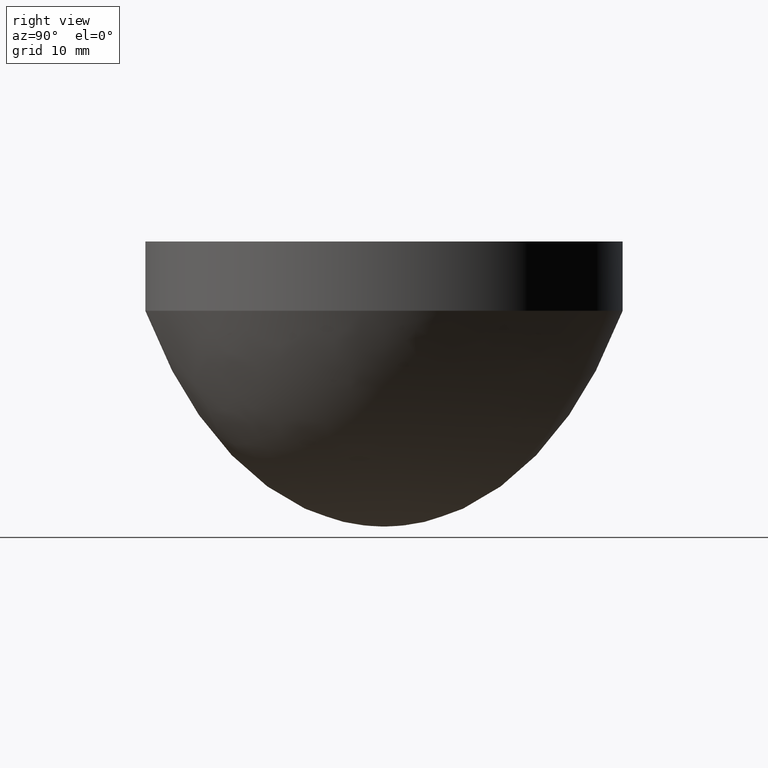
[diagram: clean part render]
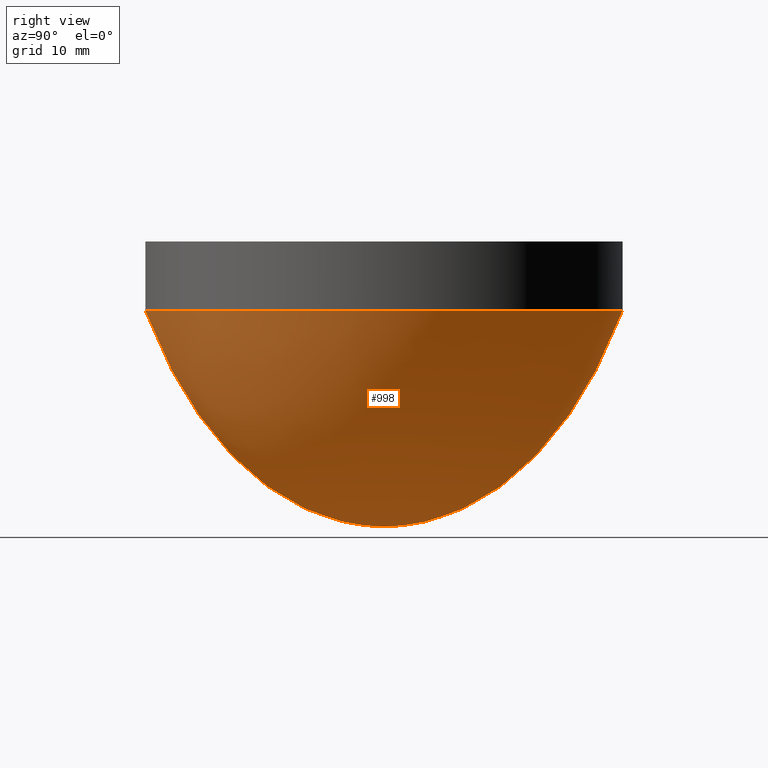
[diagram: same view with one face highlighted and labeled with its STEP entity id]
A machine part, right view. The second image highlights one B-rep face of the part: STEP entity #998.
In plain terms, the highlighted face is a freeform B-spline surface patch.
Its self-contained STEP definition (entity closure, byte-faithful):
#3 = CARTESIAN_POINT ( 'NONE',  ( -2.136753529762313070E-15, -17.44791666666669983, 9.136448106880079578 ) ) ;
#6 = CARTESIAN_POINT ( 'NONE',  ( 5.421613433725269732E-15, 22.13541666666669983, 16.20529410536409998 ) ) ;
#8 = CARTESIAN_POINT ( 'NONE',  ( 29.16666666666659680, 14.58333333333329307, 6.129499861953730644 ) ) ;
#11 = CARTESIAN_POINT ( 'NONE',  ( 26.04166666666660035, 13.02083333333329485, 4.800734322623869232 ) ) ;
#17 = CARTESIAN_POINT ( 'NONE',  ( 32.29166666666659324, -16.14583333333330373, 7.670129306182640327 ) ) ;
#18 = CARTESIAN_POINT ( 'NONE',  ( 0.000000000000000000, 20.05208333333330017, 12.66273615372799988 ) ) ;
#22 = CARTESIAN_POINT ( 'NONE',  ( 22.39583333333339965, 11.19791666666669450, 3.489552552347880532 ) ) ;
#26 = CARTESIAN_POINT ( 'NONE',  ( 49.99999999999999289, -25.00000000000001066, 22.59373731387159623 ) ) ;
#27 = CARTESIAN_POINT ( 'NONE',  ( 16.14583333333334281, 8.072916666666667851, 1.772764951032109737 ) ) ;
#28 = CARTESIAN_POINT ( 'NONE',  ( 0.000000000000000000, 13.80208333333330017, 5.440133815030280040 ) ) ;
#33 = CARTESIAN_POINT ( 'NONE',  ( -9.248634681060737195E-16, -7.552083333333329485, 1.546627555214010075 ) ) ;
#34 = CARTESIAN_POINT ( 'NONE',  ( -7.016205620115047349E-16, -5.729166666666669627, 0.8817523654343040196 ) ) ;
#36 = CARTESIAN_POINT ( 'NONE',  ( 45.83333333333339255, -22.91666666666670693, 17.74455419526839961 ) ) ;
#40 = CARTESIAN_POINT ( 'NONE',  ( 2.742698560590434422E-15, 11.19791666666669983, 3.489552552347880088 ) ) ;
#41 = CARTESIAN_POINT ( 'NONE',  ( -1.179998217928439795E-15, -9.635416666666671404, 2.551803787334469664 ) ) ;
#46 = CARTESIAN_POINT ( 'NONE',  ( -1.116214530472847586E-15, -9.114583333333330373, 2.274978497457980087 ) ) ;
#50 = CARTESIAN_POINT ( 'NONE',  ( 11.97916666666665719, -5.989583333333333037, 0.9649155050060189698 ) ) ;
#54 = CARTESIAN_POINT ( 'NONE',  ( 0.5208333333333340365, 0.2604166666666669072, 0.000000000000000000 ) ) ;
#56 = CARTESIAN_POINT ( 'NONE',  ( 0.000000000000000000, 11.97916666666669983, 4.021656314591459669 ) ) ;
#61 = CARTESIAN_POINT ( 'NONE',  ( -1.275673749111830623E-16, -1.041666666666670071, 0.02708659160149350098 ) ) ;
#62 = CARTESIAN_POINT ( 'NONE',  ( 0.000000000000000000, 5.729166666666669627, 0.8817523654343040196 ) ) ;
#65 = CARTESIAN_POINT ( 'NONE',  ( 7.291666666666658969, -3.645833333333331261, 0.3535786717714339833 ) ) ;
#66 = DIRECTION ( 'NONE',  ( 0.000000000000000000, 1.000000000000000000, 0.000000000000000000 ) ) ;
#68 = CARTESIAN_POINT ( 'NONE',  ( -2.902157779229408929E-15, -23.69791666666669983, 19.42245672759580088 ) ) ;
#69 = CARTESIAN_POINT ( 'NONE',  ( -6.378368745559128216E-16, -5.208333333333330373, 0.7269456000648499838 ) ) ;
#78 = CARTESIAN_POINT ( 'NONE',  ( -2.232429060945699905E-15, -18.22916666666669983, 10.10510103233170121 ) ) ;
#84 = CARTESIAN_POINT ( 'NONE',  ( 3.699453872424303556E-15, 15.10416666666669983, 6.618331575722380400 ) ) ;
#88 = CARTESIAN_POINT ( 'NONE',  ( 3.954588622246653459E-15, 16.14583333333330017, 7.670129306182640327 ) ) ;
#89 = CARTESIAN_POINT ( 'NONE',  ( 0.000000000000000000, 0.000000000000000000, 0.000000000000000000 ) ) ;
#93 = CARTESIAN_POINT ( 'NONE',  ( 28.64583333333339965, 14.32291666666669450, 5.894061955706379585 ) ) ;
#95 = CARTESIAN_POINT ( 'NONE',  ( 0.000000000000000000, 25.00000000000000000, 22.59373731387159978 ) ) ;
#98 = CARTESIAN_POINT ( 'NONE',  ( 47.91666666666660035, 23.95833333333328952, 20.01530144149420209 ) ) ;
#99 = CARTESIAN_POINT ( 'NONE',  ( 25.52083333333339610, 12.76041666666669272, 4.598314498066849332 ) ) ;
#100 = CARTESIAN_POINT ( 'NONE',  ( -4.464858121891388568E-16, -3.645833333333330373, 0.3535786717714339833 ) ) ;
#106 = CARTESIAN_POINT ( 'NONE',  ( -1.498916655206391965E-15, -12.23958333333330017, 4.208775266709250396 ) ) ;
#107 = CARTESIAN_POINT ( 'NONE',  ( 0.000000000000000000, 14.32291666666670160, 5.894061955706379585 ) ) ;
#113 = CARTESIAN_POINT ( 'NONE',  ( 16.66666666666665719, 8.333333333333326820, 1.891988625122589918 ) ) ;
#114 = CARTESIAN_POINT ( 'NONE',  ( -1.211890061656234420E-15, -9.895833333333328596, 2.696745851897610180 ) ) ;
#116 = CARTESIAN_POINT ( 'NONE',  ( 5.612964496092043401E-15, 22.91666666666669983, 17.74455419526839961 ) ) ;
#119 = CARTESIAN_POINT ( 'NONE',  ( 14.58333333333333393, -7.291666666666672292, 1.439713985089339898 ) ) ;
#120 = CARTESIAN_POINT ( 'NONE',  ( -9.248634681060737195E-16, -7.552083333333329485, 1.546627555214010075 ) ) ;
#122 = CARTESIAN_POINT ( 'NONE',  ( 5.038911308991721605E-15, 20.57291666666669627, 13.48022620380510084 ) ) ;
#124 = CARTESIAN_POINT ( 'NONE',  ( 1.658375873845373376E-15, 6.770833333333330373, 1.237893108845469881 ) ) ;
#125 = CARTESIAN_POINT ( 'NONE',  ( 0.000000000000000000, 8.333333333333330373, 1.891988625122589918 ) ) ;
#129 = CARTESIAN_POINT ( 'NONE',  ( 22.91666666666660390, 11.45833333333329662, 3.662044769638530539 ) ) ;
#133 = CARTESIAN_POINT ( 'NONE',  ( 40.10416666666660035, 20.05208333333328952, 12.66273615372799810 ) ) ;
#135 = CARTESIAN_POINT ( 'NONE',  ( 2.083333333333340143, 1.041666666666669627, 0.02708659160149350098 ) ) ;
#139 = CARTESIAN_POINT ( 'NONE',  ( -4.464858121891388568E-16, -3.645833333333330373, 0.3535786717714339833 ) ) ;
#140 = CARTESIAN_POINT ( 'NONE',  ( 0.000000000000000000, 5.989583333333330373, 0.9649155050060189698 ) ) ;
#144 = CARTESIAN_POINT ( 'NONE',  ( -5.421613433725257899E-16, -4.427083333333329485, 0.5233451287309639488 ) ) ;
#147 = CARTESIAN_POINT ( 'NONE',  ( -2.423780123312473574E-15, -19.79166666666669627, 12.26966891731320075 ) ) ;
#148 = CARTESIAN_POINT ( 'NONE',  ( -5.102694996447308687E-16, -4.166666666666670515, 0.4630318066237559815 ) ) ;
#152 = CARTESIAN_POINT ( 'NONE',  ( -2.934049622957196258E-15, -23.95833333333330017, 20.01530144149420209 ) ) ;
#153 = CARTESIAN_POINT ( 'NONE',  ( 8.333333333333339255, 4.166666666666667851, 0.4630318066237559815 ) ) ;
#155 = CARTESIAN_POINT ( 'NONE',  ( 38.02083333333339965, 19.01041666666668917, 11.14726954152989968 ) ) ;
#160 = CARTESIAN_POINT ( 'NONE',  ( 4.082155997157851682E-15, 16.66666666666669627, 8.235589448737830054 ) ) ;
#161 = VERTEX_POINT ( 'NONE', #89 ) ;
#166 = CARTESIAN_POINT ( 'NONE',  ( 30.20833333333338899, -15.10416666666670338, 6.618331575722379512 ) ) ;
#169 = CARTESIAN_POINT ( 'NONE',  ( -2.328104592129086739E-15, -19.01041666666669983, 11.14726954152989791 ) ) ;
#171 = CARTESIAN_POINT ( 'NONE',  ( 3.571886497513106121E-15, 14.58333333333330017, 6.129499861953729756 ) ) ;
#176 = B_SPLINE_CURVE_WITH_KNOTS ( 'NONE', 3,
 ( #95, #940, #190, #528, #625, #874, #456, #1048, #796, #364, #718, #433, #775, #18, #368, #694, #863, #607, #439, #286, #185, #619, #703, #521, #197, #781, #1031, #534, #107, #28, #869, #469, #222, #306, #56, #325, #653, #727, #636, #554, #476, #884, #802, #125, #643, #972, #546, #657, #395, #140, #62, #212, #806, #722, #1053, #228, #735, #815, #400, #820, #317, #569, #739, #649, #977, #1069 ),
 .UNSPECIFIED., .F., .F.,
 ( 4, 2, 2, 2, 2, 2, 2, 2, 2, 2, 2, 2, 2, 2, 2, 2, 2, 2, 2, 2, 2, 2, 2, 2, 2, 2, 2, 2, 2, 2, 2, 2, 4 ),
 ( -1.000000000000000000, -0.9687500000000000000, -0.9375000000000000000, -0.9062500000000000000, -0.8750000000000000000, -0.8437500000000000000, -0.8125000000000000000, -0.7812500000000000000, -0.7500000000000000000, -0.7187500000000000000, -0.6875000000000000000, -0.6562500000000000000, -0.6250000000000000000, -0.5937500000000000000, -0.5625000000000000000, -0.5312500000000000000, -0.5000000000000000000, -0.4687500000000000000, -0.4375000000000000000, -0.4062500000000000000, -0.3750000000000000000, -0.3437500000000000000, -0.3125000000000000000, -0.2812500000000000000, -0.2500000000000000000, -0.2187500000000000000, -0.1875000000000000000, -0.1562500000000000000, -0.1250000000000000000, -0.09375000000000000000, -0.06250000000000000000, -0.03125000000000000000, 0.000000000000000000 ),
 .UNSPECIFIED. ) ;
#178 = CARTESIAN_POINT ( 'NONE',  ( 31.77083333333339255, -15.88541666666670160, 7.397623930349159771 ) ) ;
#184 = CARTESIAN_POINT ( 'NONE',  ( 3.189184372779557600E-15, 13.02083333333330017, 4.800734322623869232 ) ) ;
#185 = CARTESIAN_POINT ( 'NONE',  ( 0.000000000000000000, 17.44791666666669983, 9.136448106880079578 ) ) ;
#189 = CARTESIAN_POINT ( 'NONE',  ( 17.70833333333334281, 8.854166666666666075, 2.143095489030910183 ) ) ;
#190 = CARTESIAN_POINT ( 'NONE',  ( 0.000000000000000000, 24.47916666666669983, 21.25884004741030253 ) ) ;
#196 = CARTESIAN_POINT ( 'NONE',  ( 2.551347498223660753E-15, 10.41666666666670160, 3.000145458530130149 ) ) ;
#197 = CARTESIAN_POINT ( 'NONE',  ( 0.000000000000000000, 15.88541666666669627, 7.397623930349159771 ) ) ;
#202 = CARTESIAN_POINT ( 'NONE',  ( 2.041077998578921108E-15, 8.333333333333330373, 1.891988625122589918 ) ) ;
#203 = CARTESIAN_POINT ( 'NONE',  ( -1.371349280295217211E-15, -11.19791666666669983, 3.489552552347880088 ) ) ;
#205 = CARTESIAN_POINT ( 'NONE',  ( 38.54166666666658614, -19.27083333333330373, 11.51193404118749797 ) ) ;
#207 = CARTESIAN_POINT ( 'NONE',  ( -8.929716243782786997E-16, -7.291666666666670515, 1.439713985089339898 ) ) ;
#208 = CARTESIAN_POINT ( 'NONE',  ( -1.020538999289460554E-15, -8.333333333333330373, 1.891988625122589918 ) ) ;
#211 = CARTESIAN_POINT ( 'NONE',  ( 24.47916666666660035, 12.23958333333329485, 4.208775266709250396 ) ) ;
#212 = CARTESIAN_POINT ( 'NONE',  ( 0.000000000000000000, 5.208333333333330373, 0.7269456000648499838 ) ) ;
#214 = CARTESIAN_POINT ( 'NONE',  ( 45.83333333333339965, 22.91666666666668917, 17.74455419526839961 ) ) ;
#216 = CARTESIAN_POINT ( 'NONE',  ( -3.189184372779570394E-17, -0.2604166666666670182, 0.000000000000000000 ) ) ;
#221 = CARTESIAN_POINT ( 'NONE',  ( 9.895833333333339255, -4.947916666666670515, 0.6553020603301110691 ) ) ;
#222 = CARTESIAN_POINT ( 'NONE',  ( 0.000000000000000000, 12.76041666666669983, 4.598314498066850220 ) ) ;
#224 = CARTESIAN_POINT ( 'NONE',  ( 41.14583333333339255, 20.57291666666668561, 13.48022620380510084 ) ) ;
#227 = CARTESIAN_POINT ( 'NONE',  ( 5.102694996447296854E-16, 2.083333333333330373, 0.1138825118972520006 ) ) ;
#228 = CARTESIAN_POINT ( 'NONE',  ( 0.000000000000000000, 3.645833333333330373, 0.3535786717714339833 ) ) ;
#233 = CARTESIAN_POINT ( 'NONE',  ( -2.328104592129086739E-15, -19.01041666666669983, 11.14726954152989791 ) ) ;
#235 = CARTESIAN_POINT ( 'NONE',  ( 7.016205620115036502E-16, 2.864583333333329929, 0.2172071281811369936 ) ) ;
#238 = CARTESIAN_POINT ( 'NONE',  ( 8.854166666666657193, -4.427083333333330373, 0.5233451287309639488 ) ) ;
#241 = CARTESIAN_POINT ( 'NONE',  ( 0.000000000000000000, 25.00000000000000000, 22.59373731387159978 ) ) ;
#244 = CARTESIAN_POINT ( 'NONE',  ( -1.977294311123326730E-15, -16.14583333333330017, 7.670129306182640327 ) ) ;
#247 = CARTESIAN_POINT ( 'NONE',  ( 43.22916666666659324, -21.61458333333330728, 15.24763873080519794 ) ) ;
#251 = CARTESIAN_POINT ( 'NONE',  ( -2.838374091773809423E-15, -23.17708333333330373, 18.28707795603439834 ) ) ;
#253 = CARTESIAN_POINT ( 'NONE',  ( 38.54166666666659324, 19.27083333333328596, 11.51193404118749797 ) ) ;
#254 = CARTESIAN_POINT ( 'NONE',  ( -2.519455654495860803E-15, -20.57291666666669627, 13.48022620380510084 ) ) ;
#257 = CARTESIAN_POINT ( 'NONE',  ( 33.33333333333339255, 16.66666666666668917, 8.235589448737830054 ) ) ;
#261 = CARTESIAN_POINT ( 'NONE',  ( 27.60416666666658969, -13.80208333333330373, 5.440133815030280040 ) ) ;
#263 = CARTESIAN_POINT ( 'NONE',  ( 41.66666666666659324, -20.83333333333330017, 13.90464506263379896 ) ) ;
#265 = CARTESIAN_POINT ( 'NONE',  ( 32.29166666666660035, 16.14583333333329307, 7.670129306182640327 ) ) ;
#272 = CARTESIAN_POINT ( 'NONE',  ( 47.39583333333339255, -23.69791666666670338, 19.42245672759580088 ) ) ;
#273 = CARTESIAN_POINT ( 'NONE',  ( 3.316751747690756612E-15, 13.54166666666669983, 5.221644257796890010 ) ) ;
#275 = CARTESIAN_POINT ( 'NONE',  ( -1.403241124023004934E-15, -11.45833333333330195, 3.662044769638530095 ) ) ;
#276 = CARTESIAN_POINT ( 'NONE',  ( 0.000000000000000000, 0.000000000000000000, 0.000000000000000000 ) ) ;
#280 = CARTESIAN_POINT ( 'NONE',  ( 2.423780123312468840E-15, 9.895833333333328596, 2.696745851897610180 ) ) ;
#281 = CARTESIAN_POINT ( 'NONE',  ( 0.000000000000000000, 0.000000000000000000, 0.000000000000000000 ) ) ;
#285 = CARTESIAN_POINT ( 'NONE',  ( -1.084322686745052763E-15, -8.854166666666669627, 2.143095489030910183 ) ) ;
#286 = CARTESIAN_POINT ( 'NONE',  ( 0.000000000000000000, 17.70833333333329662, 9.451398195364669519 ) ) ;
#294 = CARTESIAN_POINT ( 'NONE',  ( -2.902157779229408929E-15, -23.69791666666669983, 19.42245672759580088 ) ) ;
#295 = CARTESIAN_POINT ( 'NONE',  ( 15.10416666666665542, -7.552083333333331261, 1.546627555214010075 ) ) ;
#296 = CARTESIAN_POINT ( 'NONE',  ( -8.929716243782786997E-16, -7.291666666666670515, 1.439713985089339898 ) ) ;
#299 = CARTESIAN_POINT ( 'NONE',  ( -3.029725154140583487E-15, -24.73958333333330017, 21.90952063993099941 ) ) ;
#300 = CARTESIAN_POINT ( 'NONE',  ( 1.785943248756557399E-15, 7.291666666666670515, 1.439713985089339898 ) ) ;
#301 = CARTESIAN_POINT ( 'NONE',  ( -9.886471555616659286E-16, -8.072916666666671404, 1.772764951032109959 ) ) ;
#303 = CARTESIAN_POINT ( 'NONE',  ( 44.79166666666660745, 22.39583333333329307, 16.70365824749779904 ) ) ;
#305 = CARTESIAN_POINT ( 'NONE',  ( 13.02083333333333748, 6.510416666666666075, 1.142985929082689811 ) ) ;
#306 = CARTESIAN_POINT ( 'NONE',  ( 0.000000000000000000, 12.23958333333330017, 4.208775266709250396 ) ) ;
#308 = CARTESIAN_POINT ( 'NONE',  ( 40.10416666666659324, -20.05208333333330373, 12.66273615372799810 ) ) ;
#310 = CARTESIAN_POINT ( 'NONE',  ( -6.378368745559127230E-17, -0.5208333333333330373, 0.005414622185026030099 ) ) ;
#316 = CARTESIAN_POINT ( 'NONE',  ( 11.45833333333333925, 5.729166666666666963, 0.8817523654343040196 ) ) ;
#317 = CARTESIAN_POINT ( 'NONE',  ( 0.000000000000000000, 1.822916666666670071, 0.08674189912522990709 ) ) ;
#320 = CARTESIAN_POINT ( 'NONE',  ( 5.729166666666658969, -2.864583333333330817, 0.2172071281811370214 ) ) ;
#324 = CARTESIAN_POINT ( 'NONE',  ( 11.97916666666666075, 5.989583333333327708, 0.9649155050060189698 ) ) ;
#325 = CARTESIAN_POINT ( 'NONE',  ( 0.000000000000000000, 11.45833333333330195, 3.662044769638530095 ) ) ;
#328 = CARTESIAN_POINT ( 'NONE',  ( -2.519455654495860803E-15, -20.57291666666669627, 13.48022620380510084 ) ) ;
#329 = CARTESIAN_POINT ( 'NONE',  ( 11.45833333333333748, -5.729166666666671404, 0.8817523654343040196 ) ) ;
#332 = CARTESIAN_POINT ( 'NONE',  ( -1.562700342661991077E-15, -12.76041666666669983, 4.598314498066850220 ) ) ;
#333 = CARTESIAN_POINT ( 'NONE',  ( 4.719992871713748135E-15, 19.27083333333330017, 11.51193404118749974 ) ) ;
#336 = CARTESIAN_POINT ( 'NONE',  ( 34.89583333333339255, -17.44791666666670338, 9.136448106880079578 ) ) ;
#339 = CARTESIAN_POINT ( 'NONE',  ( 0.000000000000000000, 0.000000000000000000, 0.000000000000000000 ) ) ;
#341 = CARTESIAN_POINT ( 'NONE',  ( 4.528641809346975255E-15, 18.48958333333330017, 10.44385178771110034 ) ) ;
#344 = CARTESIAN_POINT ( 'NONE',  ( -2.742698560590422983E-15, -22.39583333333330373, 16.70365824749779904 ) ) ;
#346 = CARTESIAN_POINT ( 'NONE',  ( 3.508102810057530281E-15, 14.32291666666670160, 5.894061955706379585 ) ) ;
#352 = CARTESIAN_POINT ( 'NONE',  ( 25.52083333333339255, -12.76041666666670338, 4.598314498066849332 ) ) ;
#355 = CARTESIAN_POINT ( 'NONE',  ( 5.995666620825592317E-15, 24.47916666666669983, 21.25884004741030253 ) ) ;
#356 = CARTESIAN_POINT ( 'NONE',  ( 27.08333333333339610, 13.54166666666669272, 5.221644257796890010 ) ) ;
#357 = CARTESIAN_POINT ( 'NONE',  ( -6.378368745559127230E-17, -0.5208333333333330373, 0.005414622185026030099 ) ) ;
#359 = CARTESIAN_POINT ( 'NONE',  ( 6.378368745559140789E-17, 0.2604166666666670182, 0.000000000000000000 ) ) ;
#363 = CARTESIAN_POINT ( 'NONE',  ( 20.83333333333340320, 10.41666666666669627, 3.000145458530130149 ) ) ;
#364 = CARTESIAN_POINT ( 'NONE',  ( 0.000000000000000000, 21.61458333333330017, 15.24763873080519971 ) ) ;
#366 = CARTESIAN_POINT ( 'NONE',  ( 50.00000000000000000, 24.99999999999998934, 22.59373731387159623 ) ) ;
#367 = CARTESIAN_POINT ( 'NONE',  ( 16.14583333333333925, -8.072916666666673180, 1.772764951032109737 ) ) ;
#368 = CARTESIAN_POINT ( 'NONE',  ( 0.000000000000000000, 19.79166666666669627, 12.26966891731320075 ) ) ;
#372 = CARTESIAN_POINT ( 'NONE',  ( 2.934049622957208485E-15, 11.97916666666669983, 4.021656314591459669 ) ) ;
#373 = CARTESIAN_POINT ( 'NONE',  ( -5.421613433725257899E-16, -4.427083333333329485, 0.5233451287309639488 ) ) ;
#380 = CARTESIAN_POINT ( 'NONE',  ( 18.22916666666666430, 9.114583333333326820, 2.274978497457980531 ) ) ;
#381 = CARTESIAN_POINT ( 'NONE',  ( -1.594592186389778603E-16, -1.302083333333329929, 0.04334392892933099789 ) ) ;
#384 = CARTESIAN_POINT ( 'NONE',  ( 13.02083333333333393, -6.510416666666671404, 1.142985929082689811 ) ) ;
#389 = CARTESIAN_POINT ( 'NONE',  ( 2.604166666666659857, 1.302083333333329263, 0.04334392892933099789 ) ) ;
#393 = CARTESIAN_POINT ( 'NONE',  ( 1.084322686745051580E-15, 4.427083333333329485, 0.5233451287309639488 ) ) ;
#394 = CIRCLE ( 'NONE', #896, 25.00000000000000000 ) ;
#395 = CARTESIAN_POINT ( 'NONE',  ( 0.000000000000000000, 6.510416666666669627, 1.142985929082689811 ) ) ;
#399 = CARTESIAN_POINT ( 'NONE',  ( 2.083333333333339699, -1.041666666666670293, 0.02708659160149350098 ) ) ;
#400 = CARTESIAN_POINT ( 'NONE',  ( 0.000000000000000000, 2.604166666666670071, 0.1791151418598460054 ) ) ;
#404 = CARTESIAN_POINT ( 'NONE',  ( -1.785943248756553061E-15, -14.58333333333330017, 6.129499861953729756 ) ) ;
#405 = CARTESIAN_POINT ( 'NONE',  ( 5.208333333333340143, 2.604166666666668739, 0.1791151418598459777 ) ) ;
#408 = CARTESIAN_POINT ( 'NONE',  ( 2.604166666666659857, -1.302083333333330373, 0.04334392892933099789 ) ) ;
#415 = VERTEX_POINT ( 'NONE', #241 ) ;
#418 = CARTESIAN_POINT ( 'NONE',  ( -2.264320904673487628E-15, -18.48958333333330017, 10.44385178771110034 ) ) ;
#419 = ORIENTED_EDGE ( 'NONE', *, *, #426, .T. ) ;
#421 = CARTESIAN_POINT ( 'NONE',  ( -2.806482248046021700E-15, -22.91666666666669983, 17.74455419526839961 ) ) ;
#424 = CARTESIAN_POINT ( 'NONE',  ( 33.85416666666659324, 16.92708333333328952, 8.528542936560711496 ) ) ;
#426 = EDGE_CURVE ( 'NONE', #839, #161, #535, .T. ) ;
#428 = CARTESIAN_POINT ( 'NONE',  ( -1.658375873845378306E-15, -13.54166666666669983, 5.221644257796890010 ) ) ;
#432 = CARTESIAN_POINT ( 'NONE',  ( -1.849726936212151778E-15, -15.10416666666669983, 6.618331575722380400 ) ) ;
#433 = CARTESIAN_POINT ( 'NONE',  ( 0.000000000000000000, 20.83333333333329662, 13.90464506263379896 ) ) ;
#437 = CARTESIAN_POINT ( 'NONE',  ( 48.95833333333339965, 24.47916666666669627, 21.25884004741030253 ) ) ;
#438 = CARTESIAN_POINT ( 'NONE',  ( -2.168645373490100399E-15, -17.70833333333329662, 9.451398195364669519 ) ) ;
#439 = CARTESIAN_POINT ( 'NONE',  ( 0.000000000000000000, 18.22916666666669983, 10.10510103233170121 ) ) ;
#444 = CARTESIAN_POINT ( 'NONE',  ( 4.847560246624947147E-15, 19.79166666666669627, 12.26966891731320075 ) ) ;
#445 = FACE_OUTER_BOUND ( 'NONE', #1012, .T. ) ;
#446 = CARTESIAN_POINT ( 'NONE',  ( 21.35416666666660035, 10.67708333333329485, 3.158602740968170064 ) ) ;
#447 = CARTESIAN_POINT ( 'NONE',  ( -5.102694996447308687E-16, -4.166666666666670515, 0.4630318066237559815 ) ) ;
#449 = CARTESIAN_POINT ( 'NONE',  ( -3.061616997868383043E-15, -25.00000000000000000, 22.59373731387159978 ) ) ;
#450 = CARTESIAN_POINT ( 'NONE',  ( -1.307565592839617902E-15, -10.67708333333330017, 3.158602740968170064 ) ) ;
#451 = CARTESIAN_POINT ( 'NONE',  ( -6.059450308281178018E-16, -4.947916666666669627, 0.6553020603301110691 ) ) ;
#455 = CARTESIAN_POINT ( 'NONE',  ( 14.58333333333333925, 7.291666666666666963, 1.439713985089339898 ) ) ;
#456 = CARTESIAN_POINT ( 'NONE',  ( 0.000000000000000000, 22.91666666666669983, 17.74455419526839961 ) ) ;
#463 = CARTESIAN_POINT ( 'NONE',  ( -8.291879369226866878E-16, -6.770833333333330373, 1.237893108845469881 ) ) ;
#468 = CARTESIAN_POINT ( 'NONE',  ( 22.91666666666660035, -11.45833333333330550, 3.662044769638530539 ) ) ;
#469 = CARTESIAN_POINT ( 'NONE',  ( 0.000000000000000000, 13.02083333333330017, 4.800734322623869232 ) ) ;
#472 = CARTESIAN_POINT ( 'NONE',  ( -6.059450308281178018E-16, -4.947916666666669627, 0.6553020603301110691 ) ) ;
#475 = CARTESIAN_POINT ( 'NONE',  ( 1.467024811478599509E-15, 5.989583333333330373, 0.9649155050060189698 ) ) ;
#476 = CARTESIAN_POINT ( 'NONE',  ( 0.000000000000000000, 9.635416666666671404, 2.551803787334469664 ) ) ;
#478 = CARTESIAN_POINT ( 'NONE',  ( 42.70833333333339255, -21.35416666666670693, 14.78835382285140199 ) ) ;
#482 = CARTESIAN_POINT ( 'NONE',  ( 10.41666666666665897, -5.208333333333331261, 0.7269456000648499838 ) ) ;
#486 = CARTESIAN_POINT ( 'NONE',  ( -2.168645373490100399E-15, -17.70833333333329662, 9.451398195364669519 ) ) ;
#487 = CARTESIAN_POINT ( 'NONE',  ( 6.770833333333338366, 3.385416666666667851, 0.3044389143989399971 ) ) ;
#489 = CARTESIAN_POINT ( 'NONE',  ( 44.27083333333339255, -22.13541666666670693, 16.20529410536410353 ) ) ;
#499 = CARTESIAN_POINT ( 'NONE',  ( 26.04166666666659324, -13.02083333333330550, 4.800734322623869232 ) ) ;
#501 = CARTESIAN_POINT ( 'NONE',  ( 3.061616997868383043E-15, -25.00000000000000000, 22.59373731387159978 ) ) ;
#503 = CARTESIAN_POINT ( 'NONE',  ( -1.785943248756553061E-15, -14.58333333333330017, 6.129499861953729756 ) ) ;
#507 = CARTESIAN_POINT ( 'NONE',  ( 4.464858121891399809E-15, 18.22916666666669983, 10.10510103233170121 ) ) ;
#513 = CARTESIAN_POINT ( 'NONE',  ( 30.72916666666660035, 15.36458333333329485, 6.871724550144929111 ) ) ;
#514 = ORIENTED_EDGE ( 'NONE', *, *, #659, .F. ) ;
#520 = CARTESIAN_POINT ( 'NONE',  ( 3.890804934791077225E-15, 15.88541666666669627, 7.397623930349159771 ) ) ;
#521 = CARTESIAN_POINT ( 'NONE',  ( 0.000000000000000000, 16.14583333333330017, 7.670129306182640327 ) ) ;
#527 = CARTESIAN_POINT ( 'NONE',  ( -9.886471555616659286E-16, -8.072916666666671404, 1.772764951032109959 ) ) ;
#528 = CARTESIAN_POINT ( 'NONE',  ( 0.000000000000000000, 23.95833333333330017, 20.01530144149420209 ) ) ;
#533 = CARTESIAN_POINT ( 'NONE',  ( 19.27083333333333925, 9.635416666666664298, 2.551803787334470108 ) ) ;
#534 = CARTESIAN_POINT ( 'NONE',  ( 0.000000000000000000, 14.58333333333330017, 6.129499861953729756 ) ) ;
#535 = B_SPLINE_CURVE_WITH_KNOTS ( 'NONE', 3,
 ( #501, #988, #1004, #152, #68, #251, #421, #344, #589, #826, #836, #765, #328, #681, #147, #911, #169, #593, #752, #486, #746, #841, #661, #655, #1071, #1082, #822, #404, #741, #572, #903, #993, #332, #666, #1024, #275, #203, #707, #791, #114, #41, #967, #954, #208, #301, #120, #296, #542, #632, #712, #34, #1036, #451, #373, #447, #100, #961, #857, #945, #613, #1041, #381, #786, #357, #853, #281 ),
 .UNSPECIFIED., .F., .F.,
 ( 4, 2, 2, 2, 2, 2, 2, 2, 2, 2, 2, 2, 2, 2, 2, 2, 2, 2, 2, 2, 2, 2, 2, 2, 2, 2, 2, 2, 2, 2, 2, 2, 4 ),
 ( -1.000000000000000000, -0.9687500000000000000, -0.9375000000000000000, -0.9062500000000000000, -0.8750000000000000000, -0.8437500000000000000, -0.8125000000000000000, -0.7812500000000000000, -0.7500000000000000000, -0.7187500000000000000, -0.6875000000000000000, -0.6562500000000000000, -0.6250000000000000000, -0.5937500000000000000, -0.5625000000000000000, -0.5312500000000000000, -0.5000000000000000000, -0.4687500000000000000, -0.4375000000000000000, -0.4062500000000000000, -0.3750000000000000000, -0.3437500000000000000, -0.3125000000000000000, -0.2812500000000000000, -0.2500000000000000000, -0.2187500000000000000, -0.1875000000000000000, -0.1562500000000000000, -0.1250000000000000000, -0.09375000000000000000, -0.06250000000000000000, -0.03125000000000000000, 0.000000000000000000 ),
 .UNSPECIFIED. ) ;
#538 = CARTESIAN_POINT ( 'NONE',  ( 44.79166666666660035, -22.39583333333331083, 16.70365824749779904 ) ) ;
#541 = CARTESIAN_POINT ( 'NONE',  ( -1.179998217928439795E-15, -9.635416666666671404, 2.551803787334469664 ) ) ;
#542 = CARTESIAN_POINT ( 'NONE',  ( -8.291879369226866878E-16, -6.770833333333330373, 1.237893108845469881 ) ) ;
#545 = CARTESIAN_POINT ( 'NONE',  ( 13.54166666666665542, -6.770833333333332149, 1.237893108845469881 ) ) ;
#546 = CARTESIAN_POINT ( 'NONE',  ( 0.000000000000000000, 7.291666666666670515, 1.439713985089339898 ) ) ;
#549 = CARTESIAN_POINT ( 'NONE',  ( 5.485397121180845967E-15, 22.39583333333330373, 16.70365824749779904 ) ) ;
#553 = CARTESIAN_POINT ( 'NONE',  ( 2.615131185679235804E-15, 10.67708333333330017, 3.158602740968170064 ) ) ;
#554 = CARTESIAN_POINT ( 'NONE',  ( 0.000000000000000000, 9.895833333333328596, 2.696745851897610180 ) ) ;
#555 = CARTESIAN_POINT ( 'NONE',  ( 39.58333333333338544, -19.79166666666669983, 12.26966891731320253 ) ) ;
#557 = CARTESIAN_POINT ( 'NONE',  ( 5.676748183547618847E-15, 23.17708333333330373, 18.28707795603439834 ) ) ;
#559 = CARTESIAN_POINT ( 'NONE',  ( -2.232429060945700200E-16, -1.822916666666670071, 0.08674189912522990709 ) ) ;
#564 = CARTESIAN_POINT ( 'NONE',  ( 10.41666666666666075, 5.208333333333327708, 0.7269456000648499838 ) ) ;
#568 = CARTESIAN_POINT ( 'NONE',  ( 4.464858121891400401E-16, 1.822916666666670071, 0.08674189912522990709 ) ) ;
#569 = CARTESIAN_POINT ( 'NONE',  ( 0.000000000000000000, 1.302083333333329929, 0.04334392892933099789 ) ) ;
#572 = CARTESIAN_POINT ( 'NONE',  ( -1.690267717573165832E-15, -13.80208333333330017, 5.440133815030280040 ) ) ;
#573 = CARTESIAN_POINT ( 'NONE',  ( 8.854166666666660745, 4.427083333333327708, 0.5233451287309639488 ) ) ;
#576 = CARTESIAN_POINT ( 'NONE',  ( 41.14583333333338544, -20.57291666666670338, 13.48022620380510084 ) ) ;
#578 = CARTESIAN_POINT ( 'NONE',  ( 3.645833333333338810, -1.822916666666670737, 0.08674189912522990709 ) ) ;
#585 = CARTESIAN_POINT ( 'NONE',  ( 35.41666666666660035, 17.70833333333328952, 9.451398195364671295 ) ) ;
#589 = CARTESIAN_POINT ( 'NONE',  ( -2.710806716862634866E-15, -22.13541666666669983, 16.20529410536409998 ) ) ;
#592 = CARTESIAN_POINT ( 'NONE',  ( 31.77083333333339610, 15.88541666666669094, 7.397623930349159771 ) ) ;
#593 = CARTESIAN_POINT ( 'NONE',  ( -2.264320904673487628E-15, -18.48958333333330017, 10.44385178771110034 ) ) ;
#595 = CARTESIAN_POINT ( 'NONE',  ( 4.656209184258173478E-15, 19.01041666666669983, 11.14726954152989791 ) ) ;
#597 = EDGE_CURVE ( 'NONE', #415, #161, #176, .T. ) ;
#600 = CARTESIAN_POINT ( 'NONE',  ( -1.945402467395538612E-15, -15.88541666666669627, 7.397623930349159771 ) ) ;
#605 = CARTESIAN_POINT ( 'NONE',  ( 47.39583333333339255, 23.69791666666669272, 19.42245672759580088 ) ) ;
#606 = CARTESIAN_POINT ( 'NONE',  ( -1.594592186389778800E-15, -13.02083333333330017, 4.800734322623869232 ) ) ;
#607 = CARTESIAN_POINT ( 'NONE',  ( 0.000000000000000000, 18.48958333333330017, 10.44385178771110034 ) ) ;
#612 = CARTESIAN_POINT ( 'NONE',  ( 2.232429060945695171E-15, 9.114583333333330373, 2.274978497457980087 ) ) ;
#613 = CARTESIAN_POINT ( 'NONE',  ( -2.551347498223648427E-16, -2.083333333333330373, 0.1138825118972520006 ) ) ;
#616 = CARTESIAN_POINT ( 'NONE',  ( -2.710806716862634866E-15, -22.13541666666669983, 16.20529410536409998 ) ) ;
#618 = CARTESIAN_POINT ( 'NONE',  ( -1.467024811478604243E-15, -11.97916666666669983, 4.021656314591459669 ) ) ;
#619 = CARTESIAN_POINT ( 'NONE',  ( 0.000000000000000000, 16.92708333333329662, 8.528542936560711496 ) ) ;
#623 = CARTESIAN_POINT ( 'NONE',  ( 6.123233995736766085E-15, 25.00000000000000000, 22.59373731387159978 ) ) ;
#624 = CARTESIAN_POINT ( 'NONE',  ( 15.10416666666665719, 7.552083333333325932, 1.546627555214010075 ) ) ;
#625 = CARTESIAN_POINT ( 'NONE',  ( 0.000000000000000000, 23.69791666666669983, 19.42245672759580088 ) ) ;
#631 = CARTESIAN_POINT ( 'NONE',  ( 22.39583333333339610, -11.19791666666670338, 3.489552552347880532 ) ) ;
#632 = CARTESIAN_POINT ( 'NONE',  ( -7.972960931948917666E-16, -6.510416666666669627, 1.142985929082689811 ) ) ;
#635 = CARTESIAN_POINT ( 'NONE',  ( 2.806482248046009868E-15, 11.45833333333330195, 3.662044769638530095 ) ) ;
#636 = CARTESIAN_POINT ( 'NONE',  ( 0.000000000000000000, 10.41666666666670160, 3.000145458530130149 ) ) ;
#642 = CARTESIAN_POINT ( 'NONE',  ( 1.041666666666665853, -0.5208333333333330373, 0.005414622185026030966 ) ) ;
#643 = CARTESIAN_POINT ( 'NONE',  ( 0.000000000000000000, 8.072916666666671404, 1.772764951032109959 ) ) ;
#645 = CARTESIAN_POINT ( 'NONE',  ( -2.742698560590422983E-15, -22.39583333333330373, 16.70365824749779904 ) ) ;
#648 = CARTESIAN_POINT ( 'NONE',  ( 1.275673749111825643E-15, 5.208333333333330373, 0.7269456000648499838 ) ) ;
#649 = CARTESIAN_POINT ( 'NONE',  ( 0.000000000000000000, 0.5208333333333330373, 0.005414622185026030099 ) ) ;
#652 = CARTESIAN_POINT ( 'NONE',  ( 1.211890061656235604E-15, 4.947916666666669627, 0.6553020603301110691 ) ) ;
#653 = CARTESIAN_POINT ( 'NONE',  ( 0.000000000000000000, 11.19791666666669983, 3.489552552347880088 ) ) ;
#655 = CARTESIAN_POINT ( 'NONE',  ( -1.977294311123326730E-15, -16.14583333333330017, 7.670129306182640327 ) ) ;
#656 = CARTESIAN_POINT ( 'NONE',  ( 7.291666666666659857, 3.645833333333328596, 0.3535786717714339833 ) ) ;
#657 = CARTESIAN_POINT ( 'NONE',  ( 0.000000000000000000, 6.770833333333330373, 1.237893108845469881 ) ) ;
#659 = EDGE_CURVE ( 'NONE', #839, #415, #394, .T. ) ;
#661 = CARTESIAN_POINT ( 'NONE',  ( -2.041077998578925841E-15, -16.66666666666669627, 8.235589448737830054 ) ) ;
#663 = CARTESIAN_POINT ( 'NONE',  ( -2.551347498223648427E-16, -2.083333333333330373, 0.1138825118972520006 ) ) ;
#666 = CARTESIAN_POINT ( 'NONE',  ( -1.498916655206391965E-15, -12.23958333333330017, 4.208775266709250396 ) ) ;
#667 = CARTESIAN_POINT ( 'NONE',  ( 41.66666666666660035, 20.83333333333328952, 13.90464506263379896 ) ) ;
#668 = CARTESIAN_POINT ( 'NONE',  ( 38.02083333333339255, -19.01041666666670338, 11.14726954152989968 ) ) ;
#670 = CARTESIAN_POINT ( 'NONE',  ( 4.145939684613426339E-15, 16.92708333333329662, 8.528542936560711496 ) ) ;
#671 = ORIENTED_EDGE ( 'NONE', *, *, #597, .F. ) ;
#676 = CARTESIAN_POINT ( 'NONE',  ( 35.41666666666658614, -17.70833333333330017, 9.451398195364671295 ) ) ;
#681 = CARTESIAN_POINT ( 'NONE',  ( -2.455671967040261297E-15, -20.05208333333330017, 12.66273615372799988 ) ) ;
#684 = CARTESIAN_POINT ( 'NONE',  ( 33.85416666666659324, -16.92708333333330017, 8.528542936560711496 ) ) ;
#688 = CARTESIAN_POINT ( 'NONE',  ( 27.08333333333339255, -13.54166666666670338, 5.221644257796890010 ) ) ;
#692 = CARTESIAN_POINT ( 'NONE',  ( 33.33333333333338544, -16.66666666666669983, 8.235589448737830054 ) ) ;
#694 = CARTESIAN_POINT ( 'NONE',  ( 0.000000000000000000, 19.27083333333330017, 11.51193404118749974 ) ) ;
#702 = CARTESIAN_POINT ( 'NONE',  ( -1.211890061656234420E-15, -9.895833333333328596, 2.696745851897610180 ) ) ;
#703 = CARTESIAN_POINT ( 'NONE',  ( 0.000000000000000000, 16.66666666666669627, 8.235589448737830054 ) ) ;
#705 = CARTESIAN_POINT ( 'NONE',  ( 49.47916666666659324, -24.73958333333330728, 21.90952063993099941 ) ) ;
#706 = CARTESIAN_POINT ( 'NONE',  ( 3.125400685323982154E-15, 12.76041666666669983, 4.598314498066850220 ) ) ;
#707 = CARTESIAN_POINT ( 'NONE',  ( -1.307565592839617902E-15, -10.67708333333330017, 3.158602740968170064 ) ) ;
#708 =( BOUNDED_SURFACE ( )  B_SPLINE_SURFACE ( 3, 3, ( 
 ( #449, #26, #366, #623 ),
 ( #299, #705, #952, #965 ),
 ( #772, #959, #437, #355 ),
 ( #855, #1022, #98, #1039 ),
 ( #294, #272, #605, #779 ),
 ( #876, #730, #957, #557 ),
 ( #881, #36, #214, #116 ),
 ( #645, #538, #303, #549 ),
 ( #616, #489, #829, #6 ),
 ( #1002, #247, #890, #982 ),
 ( #894, #478, #925, #848 ),
 ( #842, #263, #667, #912 ),
 ( #254, #576, #224, #122 ),
 ( #886, #308, #133, #750 ),
 ( #946, #555, #1059, #444 ),
 ( #1038, #205, #253, #333 ),
 ( #233, #668, #155, #595 ),
 ( #418, #1017, #761, #341 ),
 ( #78, #933, #1008, #507 ),
 ( #438, #676, #585, #1000 ),
 ( #3, #336, #780, #928 ),
 ( #1023, #684, #424, #670 ),
 ( #851, #692, #257, #160 ),
 ( #244, #17, #265, #88 ),
 ( #600, #178, #592, #520 ),
 ( #939, #922, #513, #1011 ),
 ( #432, #166, #767, #84 ),
 ( #503, #838, #8, #171 ),
 ( #770, #856, #93, #346 ),
 ( #773, #261, #917, #844 ),
 ( #428, #688, #356, #273 ),
 ( #606, #499, #11, #184 ),
 ( #833, #352, #99, #706 ),
 ( #106, #1046, #211, #1052 ),
 ( #618, #862, #711, #372 ),
 ( #1035, #468, #129, #635 ),
 ( #873, #631, #22, #40 ),
 ( #450, #953, #446, #553 ),
 ( #971, #883, #363, #196 ),
 ( #702, #721, #1030, #280 ),
 ( #541, #785, #533, #795 ),
 ( #46, #1040, #380, #612 ),
 ( #285, #944, #189, #868 ),
 ( #717, #966, #113, #202 ),
 ( #527, #367, #27, #790 ),
 ( #33, #295, #624, #960 ),
 ( #207, #119, #455, #300 ),
 ( #463, #545, #878, #124 ),
 ( #801, #384, #305, #907 ),
 ( #990, #50, #324, #475 ),
 ( #1072, #329, #316, #743 ),
 ( #69, #482, #564, #648 ),
 ( #472, #221, #893, #652 ),
 ( #144, #238, #573, #393 ),
 ( #148, #810, #153, #888 ),
 ( #139, #65, #656, #904 ),
 ( #747, #1063, #487, #805 ),
 ( #726, #320, #1057, #235 ),
 ( #814, #986, #405, #823 ),
 ( #663, #819, #734, #227 ),
 ( #559, #578, #980, #568 ),
 ( #900, #408, #389, #1078 ),
 ( #61, #399, #135, #994 ),
 ( #310, #642, #976, #738 ),
 ( #216, #1068, #54, #359 ),
 ( #1032, #1084, #276, #339 ) ),
 .UNSPECIFIED., .F., .F., .T. ) 
 B_SPLINE_SURFACE_WITH_KNOTS ( ( 4, 2, 2, 2, 2, 2, 2, 2, 2, 2, 2, 2, 2, 2, 2, 2, 2, 2, 2, 2, 2, 2, 2, 2, 2, 2, 2, 2, 2, 2, 2, 2, 4 ),
 ( 4, 4 ),
 ( -1.000000000000000000, -0.9687500000000000000, -0.9375000000000000000, -0.9062500000000000000, -0.8750000000000000000, -0.8437500000000000000, -0.8125000000000000000, -0.7812500000000000000, -0.7500000000000000000, -0.7187500000000000000, -0.6875000000000000000, -0.6562500000000000000, -0.6250000000000000000, -0.5937500000000000000, -0.5625000000000000000, -0.5312500000000000000, -0.5000000000000000000, -0.4687500000000000000, -0.4375000000000000000, -0.4062500000000000000, -0.3750000000000000000, -0.3437500000000000000, -0.3125000000000000000, -0.2812500000000000000, -0.2500000000000000000, -0.2187500000000000000, -0.1875000000000000000, -0.1562500000000000000, -0.1250000000000000000, -0.09375000000000000000, -0.06250000000000000000, -0.03125000000000000000, 0.000000000000000000 ),
 ( 0.000000000000000000, 1.000000000000000000 ),
 .UNSPECIFIED. ) 
 GEOMETRIC_REPRESENTATION_ITEM ( )  RATIONAL_B_SPLINE_SURFACE ( (
 ( 1.000000000000000000, 0.3333333333333334259, 0.3333333333333334259, 1.000000000000000000),
 ( 1.000000000000000000, 0.3333333333333334259, 0.3333333333333334259, 1.000000000000000000),
 ( 1.000000000000000000, 0.3333333333333334259, 0.3333333333333334259, 1.000000000000000000),
 ( 1.000000000000000000, 0.3333333333333334259, 0.3333333333333334259, 1.000000000000000000),
 ( 1.000000000000000000, 0.3333333333333334259, 0.3333333333333334259, 1.000000000000000000),
 ( 1.000000000000000000, 0.3333333333333334259, 0.3333333333333334259, 1.000000000000000000),
 ( 1.000000000000000000, 0.3333333333333334259, 0.3333333333333334259, 1.000000000000000000),
 ( 1.000000000000000000, 0.3333333333333334259, 0.3333333333333334259, 1.000000000000000000),
 ( 1.000000000000000000, 0.3333333333333334259, 0.3333333333333334259, 1.000000000000000000),
 ( 1.000000000000000000, 0.3333333333333334259, 0.3333333333333334259, 1.000000000000000000),
 ( 1.000000000000000000, 0.3333333333333334259, 0.3333333333333334259, 1.000000000000000000),
 ( 1.000000000000000000, 0.3333333333333334259, 0.3333333333333334259, 1.000000000000000000),
 ( 1.000000000000000000, 0.3333333333333334259, 0.3333333333333334259, 1.000000000000000000),
 ( 1.000000000000000000, 0.3333333333333334259, 0.3333333333333334259, 1.000000000000000000),
 ( 1.000000000000000000, 0.3333333333333334259, 0.3333333333333334259, 1.000000000000000000),
 ( 1.000000000000000000, 0.3333333333333334259, 0.3333333333333334259, 1.000000000000000000),
 ( 1.000000000000000000, 0.3333333333333334259, 0.3333333333333334259, 1.000000000000000000),
 ( 1.000000000000000000, 0.3333333333333334259, 0.3333333333333334259, 1.000000000000000000),
 ( 1.000000000000000000, 0.3333333333333334259, 0.3333333333333334259, 1.000000000000000000),
 ( 1.000000000000000000, 0.3333333333333334259, 0.3333333333333334259, 1.000000000000000000),
 ( 1.000000000000000000, 0.3333333333333334259, 0.3333333333333334259, 1.000000000000000000),
 ( 1.000000000000000000, 0.3333333333333334259, 0.3333333333333334259, 1.000000000000000000),
 ( 1.000000000000000000, 0.3333333333333334259, 0.3333333333333334259, 1.000000000000000000),
 ( 1.000000000000000000, 0.3333333333333334259, 0.3333333333333334259, 1.000000000000000000),
 ( 1.000000000000000000, 0.3333333333333334259, 0.3333333333333334259, 1.000000000000000000),
 ( 1.000000000000000000, 0.3333333333333334259, 0.3333333333333334259, 1.000000000000000000),
 ( 1.000000000000000000, 0.3333333333333334259, 0.3333333333333334259, 1.000000000000000000),
 ( 1.000000000000000000, 0.3333333333333334259, 0.3333333333333334259, 1.000000000000000000),
 ( 1.000000000000000000, 0.3333333333333334259, 0.3333333333333334259, 1.000000000000000000),
 ( 1.000000000000000000, 0.3333333333333334259, 0.3333333333333334259, 1.000000000000000000),
 ( 1.000000000000000000, 0.3333333333333334259, 0.3333333333333334259, 1.000000000000000000),
 ( 1.000000000000000000, 0.3333333333333334259, 0.3333333333333334259, 1.000000000000000000),
 ( 1.000000000000000000, 0.3333333333333334259, 0.3333333333333334259, 1.000000000000000000),
 ( 1.000000000000000000, 0.3333333333333334259, 0.3333333333333334259, 1.000000000000000000),
 ( 1.000000000000000000, 0.3333333333333334259, 0.3333333333333334259, 1.000000000000000000),
 ( 1.000000000000000000, 0.3333333333333334259, 0.3333333333333334259, 1.000000000000000000),
 ( 1.000000000000000000, 0.3333333333333334259, 0.3333333333333334259, 1.000000000000000000),
 ( 1.000000000000000000, 0.3333333333333334259, 0.3333333333333334259, 1.000000000000000000),
 ( 1.000000000000000000, 0.3333333333333334259, 0.3333333333333334259, 1.000000000000000000),
 ( 1.000000000000000000, 0.3333333333333334259, 0.3333333333333334259, 1.000000000000000000),
 ( 1.000000000000000000, 0.3333333333333334259, 0.3333333333333334259, 1.000000000000000000),
 ( 1.000000000000000000, 0.3333333333333334259, 0.3333333333333334259, 1.000000000000000000),
 ( 1.000000000000000000, 0.3333333333333334259, 0.3333333333333334259, 1.000000000000000000),
 ( 1.000000000000000000, 0.3333333333333334259, 0.3333333333333334259, 1.000000000000000000),
 ( 1.000000000000000000, 0.3333333333333334259, 0.3333333333333334259, 1.000000000000000000),
 ( 1.000000000000000000, 0.3333333333333334259, 0.3333333333333334259, 1.000000000000000000),
 ( 1.000000000000000000, 0.3333333333333334259, 0.3333333333333334259, 1.000000000000000000),
 ( 1.000000000000000000, 0.3333333333333334259, 0.3333333333333334259, 1.000000000000000000),
 ( 1.000000000000000000, 0.3333333333333334259, 0.3333333333333334259, 1.000000000000000000),
 ( 1.000000000000000000, 0.3333333333333334259, 0.3333333333333334259, 1.000000000000000000),
 ( 1.000000000000000000, 0.3333333333333334259, 0.3333333333333334259, 1.000000000000000000),
 ( 1.000000000000000000, 0.3333333333333334259, 0.3333333333333334259, 1.000000000000000000),
 ( 1.000000000000000000, 0.3333333333333334259, 0.3333333333333334259, 1.000000000000000000),
 ( 1.000000000000000000, 0.3333333333333334259, 0.3333333333333334259, 1.000000000000000000),
 ( 1.000000000000000000, 0.3333333333333334259, 0.3333333333333334259, 1.000000000000000000),
 ( 1.000000000000000000, 0.3333333333333334259, 0.3333333333333334259, 1.000000000000000000),
 ( 1.000000000000000000, 0.3333333333333334259, 0.3333333333333334259, 1.000000000000000000),
 ( 1.000000000000000000, 0.3333333333333334259, 0.3333333333333334259, 1.000000000000000000),
 ( 1.000000000000000000, 0.3333333333333334259, 0.3333333333333334259, 1.000000000000000000),
 ( 1.000000000000000000, 0.3333333333333334259, 0.3333333333333334259, 1.000000000000000000),
 ( 1.000000000000000000, 0.3333333333333334259, 0.3333333333333334259, 1.000000000000000000),
 ( 1.000000000000000000, 0.3333333333333334259, 0.3333333333333334259, 1.000000000000000000),
 ( 1.000000000000000000, 0.3333333333333334259, 0.3333333333333334259, 1.000000000000000000),
 ( 1.000000000000000000, 0.3333333333333334259, 0.3333333333333334259, 1.000000000000000000),
 ( 1.000000000000000000, 0.3333333333333334259, 0.3333333333333334259, 1.000000000000000000),
 ( 1.000000000000000000, 0.3333333333333334259, 0.3333333333333334259, 1.000000000000000000) ) ) 
 REPRESENTATION_ITEM ( '' )  SURFACE ( )  );
#711 = CARTESIAN_POINT ( 'NONE',  ( 23.95833333333339610, 11.97916666666669627, 4.021656314591460557 ) ) ;
#712 = CARTESIAN_POINT ( 'NONE',  ( -7.335124057392997547E-16, -5.989583333333330373, 0.9649155050060189698 ) ) ;
#717 = CARTESIAN_POINT ( 'NONE',  ( -1.020538999289460554E-15, -8.333333333333330373, 1.891988625122589918 ) ) ;
#718 = CARTESIAN_POINT ( 'NONE',  ( 0.000000000000000000, 21.35416666666669983, 14.78835382285140021 ) ) ;
#721 = CARTESIAN_POINT ( 'NONE',  ( 19.79166666666665719, -9.895833333333330373, 2.696745851897610180 ) ) ;
#722 = CARTESIAN_POINT ( 'NONE',  ( 0.000000000000000000, 4.427083333333329485, 0.5233451287309639488 ) ) ;
#726 = CARTESIAN_POINT ( 'NONE',  ( -3.508102810057518251E-16, -2.864583333333329929, 0.2172071281811369936 ) ) ;
#727 = CARTESIAN_POINT ( 'NONE',  ( 0.000000000000000000, 10.67708333333330017, 3.158602740968170064 ) ) ;
#730 = CARTESIAN_POINT ( 'NONE',  ( 46.35416666666659324, -23.17708333333330728, 18.28707795603439834 ) ) ;
#734 = CARTESIAN_POINT ( 'NONE',  ( 4.166666666666660745, 2.083333333333329485, 0.1138825118972520006 ) ) ;
#735 = CARTESIAN_POINT ( 'NONE',  ( 0.000000000000000000, 3.385416666666669627, 0.3044389143989399971 ) ) ;
#738 = CARTESIAN_POINT ( 'NONE',  ( 1.275673749111825446E-16, 0.5208333333333330373, 0.005414622185026030099 ) ) ;
#739 = CARTESIAN_POINT ( 'NONE',  ( 0.000000000000000000, 1.041666666666670071, 0.02708659160149350098 ) ) ;
#741 = CARTESIAN_POINT ( 'NONE',  ( -1.754051405028765141E-15, -14.32291666666670160, 5.894061955706379585 ) ) ;
#743 = CARTESIAN_POINT ( 'NONE',  ( 1.403241124023009470E-15, 5.729166666666669627, 0.8817523654343040196 ) ) ;
#744 = CARTESIAN_POINT ( 'NONE',  ( 0.000000000000000000, 0.000000000000000000, 22.59373731387159978 ) ) ;
#746 = CARTESIAN_POINT ( 'NONE',  ( -2.136753529762313070E-15, -17.44791666666669983, 9.136448106880079578 ) ) ;
#747 = CARTESIAN_POINT ( 'NONE',  ( -4.145939684613439356E-16, -3.385416666666669627, 0.3044389143989399971 ) ) ;
#750 = CARTESIAN_POINT ( 'NONE',  ( 4.911343934080522593E-15, 20.05208333333330017, 12.66273615372799988 ) ) ;
#752 = CARTESIAN_POINT ( 'NONE',  ( -2.232429060945699905E-15, -18.22916666666669983, 10.10510103233170121 ) ) ;
#761 = CARTESIAN_POINT ( 'NONE',  ( 36.97916666666660035, 18.48958333333328952, 10.44385178771110034 ) ) ;
#765 = CARTESIAN_POINT ( 'NONE',  ( -2.551347498223648131E-15, -20.83333333333329662, 13.90464506263379896 ) ) ;
#767 = CARTESIAN_POINT ( 'NONE',  ( 30.20833333333339610, 15.10416666666669272, 6.618331575722379512 ) ) ;
#770 = CARTESIAN_POINT ( 'NONE',  ( -1.754051405028765141E-15, -14.32291666666670160, 5.894061955706379585 ) ) ;
#772 = CARTESIAN_POINT ( 'NONE',  ( -2.997833310412796158E-15, -24.47916666666669983, 21.25884004741030253 ) ) ;
#773 = CARTESIAN_POINT ( 'NONE',  ( -1.690267717573165832E-15, -13.80208333333330017, 5.440133815030280040 ) ) ;
#775 = CARTESIAN_POINT ( 'NONE',  ( 0.000000000000000000, 20.57291666666669627, 13.48022620380510084 ) ) ;
#779 = CARTESIAN_POINT ( 'NONE',  ( 5.804315558458817859E-15, 23.69791666666669983, 19.42245672759580088 ) ) ;
#780 = CARTESIAN_POINT ( 'NONE',  ( 34.89583333333339965, 17.44791666666669272, 9.136448106880079578 ) ) ;
#781 = CARTESIAN_POINT ( 'NONE',  ( 0.000000000000000000, 15.36458333333330195, 6.871724550144929999 ) ) ;
#785 = CARTESIAN_POINT ( 'NONE',  ( 19.27083333333333570, -9.635416666666673180, 2.551803787334470108 ) ) ;
#786 = CARTESIAN_POINT ( 'NONE',  ( -1.275673749111830623E-16, -1.041666666666670071, 0.02708659160149350098 ) ) ;
#790 = CARTESIAN_POINT ( 'NONE',  ( 1.977294311123331857E-15, 8.072916666666671404, 1.772764951032109959 ) ) ;
#791 = CARTESIAN_POINT ( 'NONE',  ( -1.275673749111830376E-15, -10.41666666666670160, 3.000145458530130149 ) ) ;
#795 = CARTESIAN_POINT ( 'NONE',  ( 2.359996435856879590E-15, 9.635416666666671404, 2.551803787334469664 ) ) ;
#796 = CARTESIAN_POINT ( 'NONE',  ( 0.000000000000000000, 22.13541666666669983, 16.20529410536409998 ) ) ;
#801 = CARTESIAN_POINT ( 'NONE',  ( -7.972960931948917666E-16, -6.510416666666669627, 1.142985929082689811 ) ) ;
#802 = CARTESIAN_POINT ( 'NONE',  ( 0.000000000000000000, 8.854166666666669627, 2.143095489030910183 ) ) ;
#805 = CARTESIAN_POINT ( 'NONE',  ( 8.291879369226878711E-16, 3.385416666666669627, 0.3044389143989399971 ) ) ;
#806 = CARTESIAN_POINT ( 'NONE',  ( 0.000000000000000000, 4.947916666666669627, 0.6553020603301110691 ) ) ;
#810 = CARTESIAN_POINT ( 'NONE',  ( 8.333333333333337478, -4.166666666666670515, 0.4630318066237559815 ) ) ;
#814 = CARTESIAN_POINT ( 'NONE',  ( -3.189184372779570025E-16, -2.604166666666670071, 0.1791151418598460054 ) ) ;
#815 = CARTESIAN_POINT ( 'NONE',  ( 0.000000000000000000, 2.864583333333329929, 0.2172071281811369936 ) ) ;
#819 = CARTESIAN_POINT ( 'NONE',  ( 4.166666666666659857, -2.083333333333330817, 0.1138825118972520006 ) ) ;
#820 = CARTESIAN_POINT ( 'NONE',  ( 0.000000000000000000, 2.083333333333330373, 0.1138825118972520006 ) ) ;
#822 = CARTESIAN_POINT ( 'NONE',  ( -1.849726936212151778E-15, -15.10416666666669983, 6.618331575722380400 ) ) ;
#823 = CARTESIAN_POINT ( 'NONE',  ( 6.378368745559140049E-16, 2.604166666666670071, 0.1791151418598460054 ) ) ;
#826 = CARTESIAN_POINT ( 'NONE',  ( -2.647023029407035754E-15, -21.61458333333330017, 15.24763873080519971 ) ) ;
#829 = CARTESIAN_POINT ( 'NONE',  ( 44.27083333333339965, 22.13541666666668917, 16.20529410536410353 ) ) ;
#833 = CARTESIAN_POINT ( 'NONE',  ( -1.562700342661991077E-15, -12.76041666666669983, 4.598314498066850220 ) ) ;
#836 = CARTESIAN_POINT ( 'NONE',  ( -2.615131185679247637E-15, -21.35416666666669983, 14.78835382285140021 ) ) ;
#838 = CARTESIAN_POINT ( 'NONE',  ( 29.16666666666659324, -14.58333333333330373, 6.129499861953730644 ) ) ;
#839 = VERTEX_POINT ( 'NONE', #981 ) ;
#841 = CARTESIAN_POINT ( 'NONE',  ( -2.072969842306713170E-15, -16.92708333333329662, 8.528542936560711496 ) ) ;
#842 = CARTESIAN_POINT ( 'NONE',  ( -2.551347498223648131E-15, -20.83333333333329662, 13.90464506263379896 ) ) ;
#844 = CARTESIAN_POINT ( 'NONE',  ( 3.380535435146331663E-15, 13.80208333333330017, 5.440133815030280040 ) ) ;
#848 = CARTESIAN_POINT ( 'NONE',  ( 5.230262371358495274E-15, 21.35416666666669983, 14.78835382285140021 ) ) ;
#851 = CARTESIAN_POINT ( 'NONE',  ( -2.041077998578925841E-15, -16.66666666666669627, 8.235589448737830054 ) ) ;
#853 = CARTESIAN_POINT ( 'NONE',  ( -3.189184372779570394E-17, -0.2604166666666670182, 0.000000000000000000 ) ) ;
#855 = CARTESIAN_POINT ( 'NONE',  ( -2.934049622957196258E-15, -23.95833333333330017, 20.01530144149420209 ) ) ;
#856 = CARTESIAN_POINT ( 'NONE',  ( 28.64583333333338899, -14.32291666666670515, 5.894061955706379585 ) ) ;
#857 = CARTESIAN_POINT ( 'NONE',  ( -3.508102810057518251E-16, -2.864583333333329929, 0.2172071281811369936 ) ) ;
#862 = CARTESIAN_POINT ( 'NONE',  ( 23.95833333333339255, -11.97916666666670338, 4.021656314591460557 ) ) ;
#863 = CARTESIAN_POINT ( 'NONE',  ( 0.000000000000000000, 19.01041666666669983, 11.14726954152989791 ) ) ;
#868 = CARTESIAN_POINT ( 'NONE',  ( 2.168645373490105526E-15, 8.854166666666669627, 2.143095489030910183 ) ) ;
#869 = CARTESIAN_POINT ( 'NONE',  ( 0.000000000000000000, 13.54166666666669983, 5.221644257796890010 ) ) ;
#873 = CARTESIAN_POINT ( 'NONE',  ( -1.371349280295217211E-15, -11.19791666666669983, 3.489552552347880088 ) ) ;
#874 = CARTESIAN_POINT ( 'NONE',  ( 0.000000000000000000, 23.17708333333330373, 18.28707795603439834 ) ) ;
#876 = CARTESIAN_POINT ( 'NONE',  ( -2.838374091773809423E-15, -23.17708333333330373, 18.28707795603439834 ) ) ;
#878 = CARTESIAN_POINT ( 'NONE',  ( 13.54166666666665897, 6.770833333333326820, 1.237893108845469881 ) ) ;
#881 = CARTESIAN_POINT ( 'NONE',  ( -2.806482248046021700E-15, -22.91666666666669983, 17.74455419526839961 ) ) ;
#883 = CARTESIAN_POINT ( 'NONE',  ( 20.83333333333339965, -10.41666666666670338, 3.000145458530130149 ) ) ;
#884 = CARTESIAN_POINT ( 'NONE',  ( 0.000000000000000000, 9.114583333333330373, 2.274978497457980087 ) ) ;
#886 = CARTESIAN_POINT ( 'NONE',  ( -2.455671967040261297E-15, -20.05208333333330017, 12.66273615372799988 ) ) ;
#888 = CARTESIAN_POINT ( 'NONE',  ( 1.020538999289461737E-15, 4.166666666666670515, 0.4630318066237559815 ) ) ;
#890 = CARTESIAN_POINT ( 'NONE',  ( 43.22916666666660745, 21.61458333333329307, 15.24763873080519794 ) ) ;
#893 = CARTESIAN_POINT ( 'NONE',  ( 9.895833333333339255, 4.947916666666666963, 0.6553020603301110691 ) ) ;
#894 = CARTESIAN_POINT ( 'NONE',  ( -2.615131185679247637E-15, -21.35416666666669983, 14.78835382285140021 ) ) ;
#896 = AXIS2_PLACEMENT_3D ( 'NONE', #744, #1073, #66 ) ;
#900 = CARTESIAN_POINT ( 'NONE',  ( -1.594592186389778603E-16, -1.302083333333329929, 0.04334392892933099789 ) ) ;
#903 = CARTESIAN_POINT ( 'NONE',  ( -1.658375873845378306E-15, -13.54166666666669983, 5.221644257796890010 ) ) ;
#904 = CARTESIAN_POINT ( 'NONE',  ( 8.929716243782777136E-16, 3.645833333333330373, 0.3535786717714339833 ) ) ;
#907 = CARTESIAN_POINT ( 'NONE',  ( 1.594592186389783533E-15, 6.510416666666669627, 1.142985929082689811 ) ) ;
#911 = CARTESIAN_POINT ( 'NONE',  ( -2.359996435856874068E-15, -19.27083333333330017, 11.51193404118749974 ) ) ;
#912 = CARTESIAN_POINT ( 'NONE',  ( 5.102694996447296262E-15, 20.83333333333329662, 13.90464506263379896 ) ) ;
#917 = CARTESIAN_POINT ( 'NONE',  ( 27.60416666666659680, 13.80208333333329307, 5.440133815030280040 ) ) ;
#922 = CARTESIAN_POINT ( 'NONE',  ( 30.72916666666658969, -15.36458333333330550, 6.871724550144929111 ) ) ;
#925 = CARTESIAN_POINT ( 'NONE',  ( 42.70833333333339965, 21.35416666666668917, 14.78835382285140199 ) ) ;
#928 = CARTESIAN_POINT ( 'NONE',  ( 4.273507059524626140E-15, 17.44791666666669983, 9.136448106880079578 ) ) ;
#933 = CARTESIAN_POINT ( 'NONE',  ( 36.45833333333339255, -18.22916666666670338, 10.10510103233170121 ) ) ;
#939 = CARTESIAN_POINT ( 'NONE',  ( -1.881618779939939501E-15, -15.36458333333330195, 6.871724550144929999 ) ) ;
#940 = CARTESIAN_POINT ( 'NONE',  ( 0.000000000000000000, 24.73958333333330017, 21.90952063993099941 ) ) ;
#944 = CARTESIAN_POINT ( 'NONE',  ( 17.70833333333333570, -8.854166666666671404, 2.143095489030910183 ) ) ;
#945 = CARTESIAN_POINT ( 'NONE',  ( -3.189184372779570025E-16, -2.604166666666670071, 0.1791151418598460054 ) ) ;
#946 = CARTESIAN_POINT ( 'NONE',  ( -2.423780123312473574E-15, -19.79166666666669627, 12.26966891731320075 ) ) ;
#952 = CARTESIAN_POINT ( 'NONE',  ( 49.47916666666659324, 24.73958333333329307, 21.90952063993099941 ) ) ;
#953 = CARTESIAN_POINT ( 'NONE',  ( 21.35416666666660035, -10.67708333333330550, 3.158602740968170064 ) ) ;
#954 = CARTESIAN_POINT ( 'NONE',  ( -1.084322686745052763E-15, -8.854166666666669627, 2.143095489030910183 ) ) ;
#957 = CARTESIAN_POINT ( 'NONE',  ( 46.35416666666660035, 23.17708333333328952, 18.28707795603439834 ) ) ;
#959 = CARTESIAN_POINT ( 'NONE',  ( 48.95833333333339255, -24.47916666666671048, 21.25884004741030253 ) ) ;
#960 = CARTESIAN_POINT ( 'NONE',  ( 1.849726936212147439E-15, 7.552083333333329485, 1.546627555214010075 ) ) ;
#961 = CARTESIAN_POINT ( 'NONE',  ( -4.145939684613439356E-16, -3.385416666666669627, 0.3044389143989399971 ) ) ;
#965 = CARTESIAN_POINT ( 'NONE',  ( 6.059450308281166974E-15, 24.73958333333330017, 21.90952063993099941 ) ) ;
#966 = CARTESIAN_POINT ( 'NONE',  ( 16.66666666666665719, -8.333333333333330373, 1.891988625122589918 ) ) ;
#967 = CARTESIAN_POINT ( 'NONE',  ( -1.116214530472847586E-15, -9.114583333333330373, 2.274978497457980087 ) ) ;
#971 = CARTESIAN_POINT ( 'NONE',  ( -1.275673749111830376E-15, -10.41666666666670160, 3.000145458530130149 ) ) ;
#972 = CARTESIAN_POINT ( 'NONE',  ( 0.000000000000000000, 7.552083333333329485, 1.546627555214010075 ) ) ;
#976 = CARTESIAN_POINT ( 'NONE',  ( 1.041666666666666075, 0.5208333333333328152, 0.005414622185026030966 ) ) ;
#977 = CARTESIAN_POINT ( 'NONE',  ( 0.000000000000000000, 0.2604166666666670182, 0.000000000000000000 ) ) ;
#980 = CARTESIAN_POINT ( 'NONE',  ( 3.645833333333340143, 1.822916666666669405, 0.08674189912522990709 ) ) ;
#981 = CARTESIAN_POINT ( 'NONE',  ( 3.061616997868383043E-15, -25.00000000000000000, 22.59373731387159978 ) ) ;
#982 = CARTESIAN_POINT ( 'NONE',  ( 5.294046058814071509E-15, 21.61458333333330017, 15.24763873080519971 ) ) ;
#986 = CARTESIAN_POINT ( 'NONE',  ( 5.208333333333339255, -2.604166666666670515, 0.1791151418598459777 ) ) ;
#988 = CARTESIAN_POINT ( 'NONE',  ( -3.029725154140583487E-15, -24.73958333333330017, 21.90952063993099941 ) ) ;
#990 = CARTESIAN_POINT ( 'NONE',  ( -7.335124057392997547E-16, -5.989583333333330373, 0.9649155050060189698 ) ) ;
#993 = CARTESIAN_POINT ( 'NONE',  ( -1.594592186389778800E-15, -13.02083333333330017, 4.800734322623869232 ) ) ;
#994 = CARTESIAN_POINT ( 'NONE',  ( 2.551347498223661246E-16, 1.041666666666670071, 0.02708659160149350098 ) ) ;
#998 = ADVANCED_FACE ( 'NONE', ( #445 ), #708, .T. ) ;
#1000 = CARTESIAN_POINT ( 'NONE',  ( 4.337290746980200797E-15, 17.70833333333329662, 9.451398195364669519 ) ) ;
#1002 = CARTESIAN_POINT ( 'NONE',  ( -2.647023029407035754E-15, -21.61458333333330017, 15.24763873080519971 ) ) ;
#1004 = CARTESIAN_POINT ( 'NONE',  ( -2.997833310412796158E-15, -24.47916666666669983, 21.25884004741030253 ) ) ;
#1008 = CARTESIAN_POINT ( 'NONE',  ( 36.45833333333339255, 18.22916666666668561, 10.10510103233170121 ) ) ;
#1011 = CARTESIAN_POINT ( 'NONE',  ( 3.763237559879879001E-15, 15.36458333333330195, 6.871724550144929999 ) ) ;
#1012 = EDGE_LOOP ( 'NONE', ( #514, #419, #671 ) ) ;
#1017 = CARTESIAN_POINT ( 'NONE',  ( 36.97916666666659324, -18.48958333333330373, 10.44385178771110034 ) ) ;
#1022 = CARTESIAN_POINT ( 'NONE',  ( 47.91666666666658614, -23.95833333333331083, 20.01530144149420209 ) ) ;
#1023 = CARTESIAN_POINT ( 'NONE',  ( -2.072969842306713170E-15, -16.92708333333329662, 8.528542936560711496 ) ) ;
#1024 = CARTESIAN_POINT ( 'NONE',  ( -1.467024811478604243E-15, -11.97916666666669983, 4.021656314591459669 ) ) ;
#1030 = CARTESIAN_POINT ( 'NONE',  ( 19.79166666666665719, 9.895833333333323267, 2.696745851897610180 ) ) ;
#1031 = CARTESIAN_POINT ( 'NONE',  ( 0.000000000000000000, 15.10416666666669983, 6.618331575722380400 ) ) ;
#1032 = CARTESIAN_POINT ( 'NONE',  ( 0.000000000000000000, 0.000000000000000000, 0.000000000000000000 ) ) ;
#1035 = CARTESIAN_POINT ( 'NONE',  ( -1.403241124023004934E-15, -11.45833333333330195, 3.662044769638530095 ) ) ;
#1036 = CARTESIAN_POINT ( 'NONE',  ( -6.378368745559128216E-16, -5.208333333333330373, 0.7269456000648499838 ) ) ;
#1038 = CARTESIAN_POINT ( 'NONE',  ( -2.359996435856874068E-15, -19.27083333333330017, 11.51193404118749974 ) ) ;
#1039 = CARTESIAN_POINT ( 'NONE',  ( 5.868099245914392516E-15, 23.95833333333330017, 20.01530144149420209 ) ) ;
#1040 = CARTESIAN_POINT ( 'NONE',  ( 18.22916666666665719, -9.114583333333332149, 2.274978497457980531 ) ) ;
#1041 = CARTESIAN_POINT ( 'NONE',  ( -2.232429060945700200E-16, -1.822916666666670071, 0.08674189912522990709 ) ) ;
#1046 = CARTESIAN_POINT ( 'NONE',  ( 24.47916666666659324, -12.23958333333330550, 4.208775266709250396 ) ) ;
#1048 = CARTESIAN_POINT ( 'NONE',  ( 0.000000000000000000, 22.39583333333330373, 16.70365824749779904 ) ) ;
#1052 = CARTESIAN_POINT ( 'NONE',  ( 2.997833310412783931E-15, 12.23958333333330017, 4.208775266709250396 ) ) ;
#1053 = CARTESIAN_POINT ( 'NONE',  ( 0.000000000000000000, 4.166666666666670515, 0.4630318066237559815 ) ) ;
#1057 = CARTESIAN_POINT ( 'NONE',  ( 5.729166666666659857, 2.864583333333329040, 0.2172071281811370214 ) ) ;
#1059 = CARTESIAN_POINT ( 'NONE',  ( 39.58333333333339965, 19.79166666666668917, 12.26966891731320253 ) ) ;
#1063 = CARTESIAN_POINT ( 'NONE',  ( 6.770833333333337478, -3.385416666666670515, 0.3044389143989399971 ) ) ;
#1068 = CARTESIAN_POINT ( 'NONE',  ( 0.5208333333333339255, -0.2604166666666670737, 0.000000000000000000 ) ) ;
#1069 = CARTESIAN_POINT ( 'NONE',  ( 0.000000000000000000, 0.000000000000000000, 0.000000000000000000 ) ) ;
#1071 = CARTESIAN_POINT ( 'NONE',  ( -1.945402467395538612E-15, -15.88541666666669627, 7.397623930349159771 ) ) ;
#1072 = CARTESIAN_POINT ( 'NONE',  ( -7.016205620115047349E-16, -5.729166666666669627, 0.8817523654343040196 ) ) ;
#1073 = DIRECTION ( 'NONE',  ( 0.000000000000000000, 0.000000000000000000, 1.000000000000000000 ) ) ;
#1078 = CARTESIAN_POINT ( 'NONE',  ( 3.189184372779557206E-16, 1.302083333333329929, 0.04334392892933099789 ) ) ;
#1082 = CARTESIAN_POINT ( 'NONE',  ( -1.881618779939939501E-15, -15.36458333333330195, 6.871724550144929999 ) ) ;
#1084 = CARTESIAN_POINT ( 'NONE',  ( 0.000000000000000000, 0.000000000000000000, 0.000000000000000000 ) ) ;